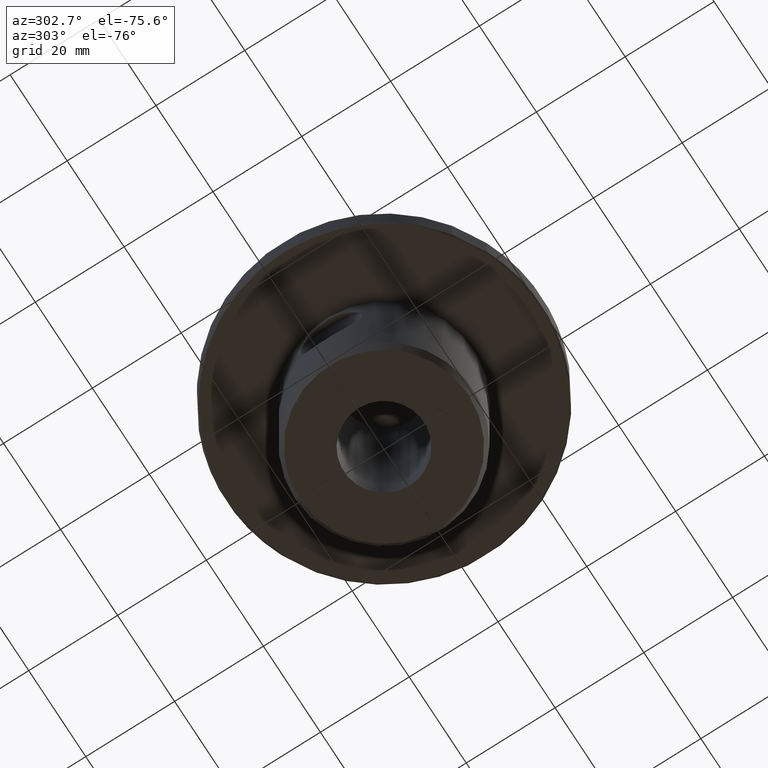
[diagram: clean part render]
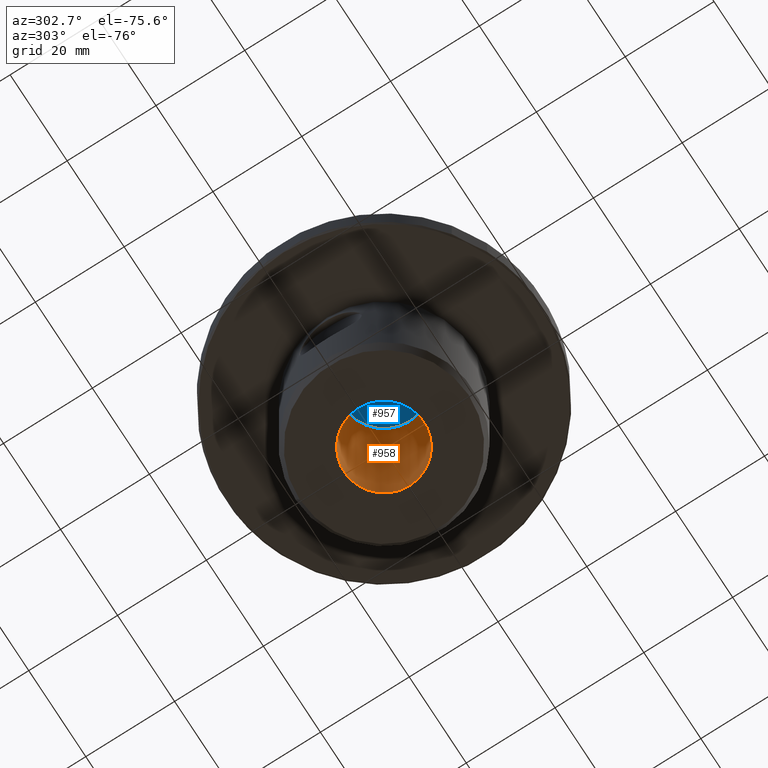
[diagram: same view with the hole feature highlighted: cylindrical wall and planar end face, labeled with their STEP entity ids]
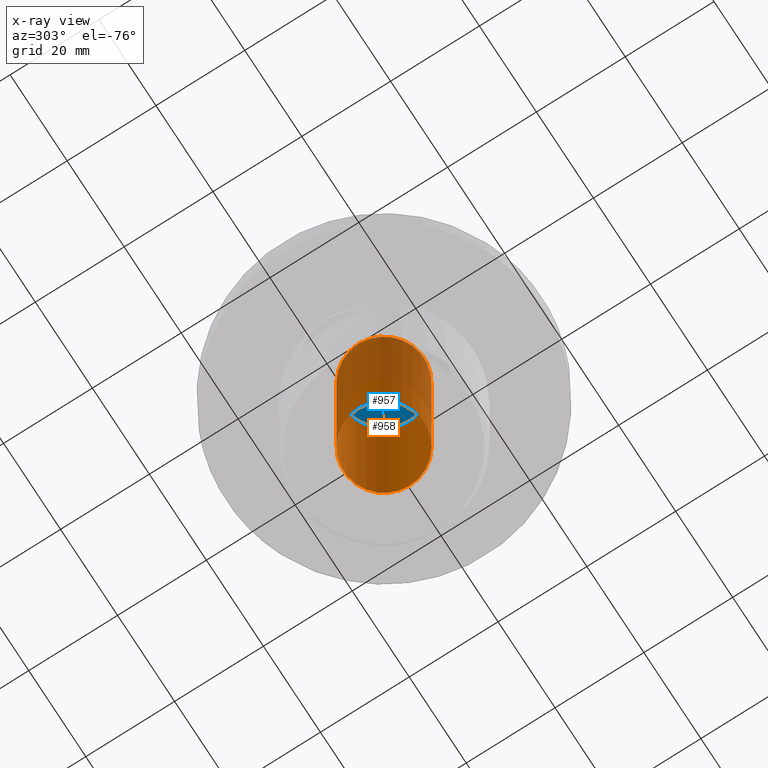
[diagram: x-ray of the same camera — body ghosted, the hole faces saturated]
A machine part, auxiliary view. The highlighted faces form one hole feature of diameter 18 mm: the cylindrical wall (entity #958, orange) and its adjacent planar end face (entity #957, blue) — they share a circular edge in the B-rep.
The next image is the same camera in x-ray (body ghosted, the hole faces saturated) — the bore reads through the body.
Wall:
#148=CYLINDRICAL_SURFACE('',#1090,8.9999999999999);
#409=ORIENTED_EDGE('',*,*,#417,.F.);
#410=ORIENTED_EDGE('',*,*,#539,.T.);
#417=EDGE_CURVE('',#542,#542,#633,.T.);
#539=EDGE_CURVE('',#630,#630,#685,.T.);
#542=VERTEX_POINT('',#1372);
#630=VERTEX_POINT('',#1813);
#633=CIRCLE('',#977,8.99999999999988);
#685=CIRCLE('',#1089,8.99999999999991);
#776=EDGE_LOOP('',(#409));
#777=EDGE_LOOP('',(#410));
#872=FACE_BOUND('',#776,.T.);
#873=FACE_BOUND('',#777,.T.);
#958=ADVANCED_FACE('',(#872,#873),#148,.F.);
#977=AXIS2_PLACEMENT_3D('',#1371,#1101,#1102);
#1089=AXIS2_PLACEMENT_3D('',#1812,#1353,#1354);
#1090=AXIS2_PLACEMENT_3D('',#1814,#1355,#1356);
#1101=DIRECTION('',(0.,0.,1.));
#1102=DIRECTION('',(1.,0.,0.));
#1353=DIRECTION('',(0.,0.,1.));
#1354=DIRECTION('',(1.,0.,0.));
#1355=DIRECTION('',(0.,0.,1.));
#1356=DIRECTION('',(1.,0.,0.));
#1371=CARTESIAN_POINT('',(0.,0.,-41.));
#1372=CARTESIAN_POINT('',(8.99999999999988,0.,-41.));
#1812=CARTESIAN_POINT('',(0.,0.,8.));
#1813=CARTESIAN_POINT('',(8.99999999999991,0.,8.));
#1814=CARTESIAN_POINT('',(0.,0.,8.00000000000001));
End face:
#408=ORIENTED_EDGE('',*,*,#539,.F.);
#539=EDGE_CURVE('',#630,#630,#685,.T.);
#630=VERTEX_POINT('',#1813);
#685=CIRCLE('',#1089,8.99999999999991);
#775=EDGE_LOOP('',(#408));
#871=FACE_BOUND('',#775,.T.);
#894=PLANE('',#1088);
#957=ADVANCED_FACE('',(#871),#894,.F.);
#1088=AXIS2_PLACEMENT_3D('',#1811,#1351,#1352);
#1089=AXIS2_PLACEMENT_3D('',#1812,#1353,#1354);
#1351=DIRECTION('',(0.,0.,1.));
#1352=DIRECTION('',(1.,0.,0.));
#1353=DIRECTION('',(0.,0.,1.));
#1354=DIRECTION('',(1.,0.,0.));
#1811=CARTESIAN_POINT('',(8.99999999999991,0.,8.00000000000001));
#1812=CARTESIAN_POINT('',(0.,0.,8.));
#1813=CARTESIAN_POINT('',(8.99999999999991,0.,8.));